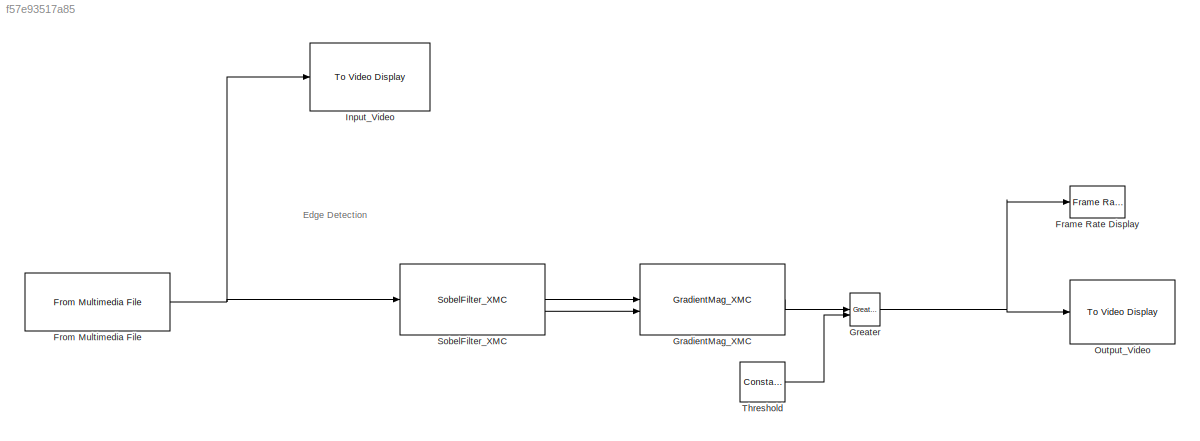
MODEL slx_f57e93517a85
KIND model
CONFIG AbsTol = auto
CONFIG EnableMultiTasking = on
CONFIG FixedStep = auto
CONFIG MaxStep = auto
CONFIG MinStep = auto
CONFIG RelTol = 1e-3
CONFIG SampleTimeConstraint = Unconstrained
CONFIG SolverName = VariableStepAuto
CONFIG StartTime = 0.0
CONFIG StopTime = 5
BLOCK [Reference] Frame Rate Display  REF=visionsinks/Frame Rate
Display
  SourceBlock = visionsinks/Frame Rate\nDisplay
  SourceType = Frame Rate Display
BLOCK [Reference] From Multimedia File  REF=dspvision/From Multimedia File
  SourceBlock = dspvision/From Multimedia File
  SourceType = From Multimedia File
BLOCK [Reference] GradientMag_XMC  REF=Sobeledge_lib/GradientMag_XMC
  SourceBlock = Sobeledge_lib/GradientMag_XMC
  SourceType = Import Function
BLOCK [Reference] Greater  REF=hlsBasic/Greater
  Description = Performs multiplication
  SourceBlock = hlsBasic/Greater
  SourceType = Greater
BLOCK [Reference] Input_Video  REF=visionsinks/To Video Display
  SourceBlock = visionsinks/To Video Display
  SourceType = To Video Display
BLOCK [Reference] Output_Video  REF=visionsinks/To Video Display
  SourceBlock = visionsinks/To Video Display
  SourceType = To Video Display
BLOCK [Reference] SobelFilter_XMC  REF=Sobeledge_lib/SobelFilter_XMC
  SourceBlock = Sobeledge_lib/SobelFilter_XMC
  SourceType = Import Function
BLOCK [Reference] Threshold  REF=hlsBasic/Constant
  Description = Performs multiplication
  SourceBlock = hlsBasic/Constant
  SourceType = Constant
ANNOTATION (root): Edge Detection
NET From Multimedia File:1 -> Input_Video:1, SobelFilter_XMC:1
LINE GradientMag_XMC:1 -> Greater:1
NET Greater:1 -> Frame Rate Display:1, Output_Video:1
LINE SobelFilter_XMC:1 -> GradientMag_XMC:1
LINE SobelFilter_XMC:2 -> GradientMag_XMC:2
LINE Threshold:1 -> Greater:2
note: NET lines group one-source signal fan-out (src -> all destinations, sorted); 1:1 wires keep LINE
